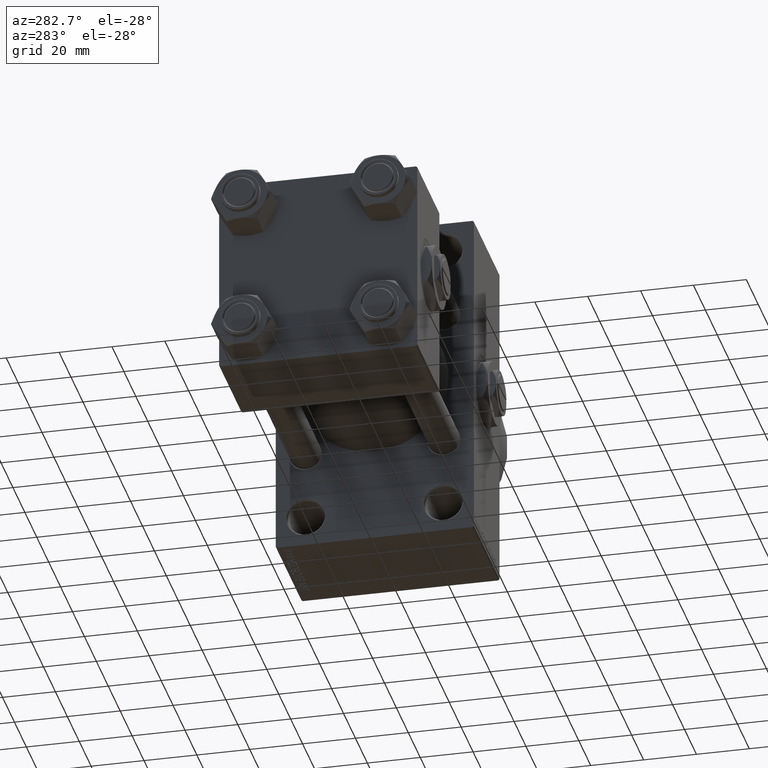
[diagram: clean part render]
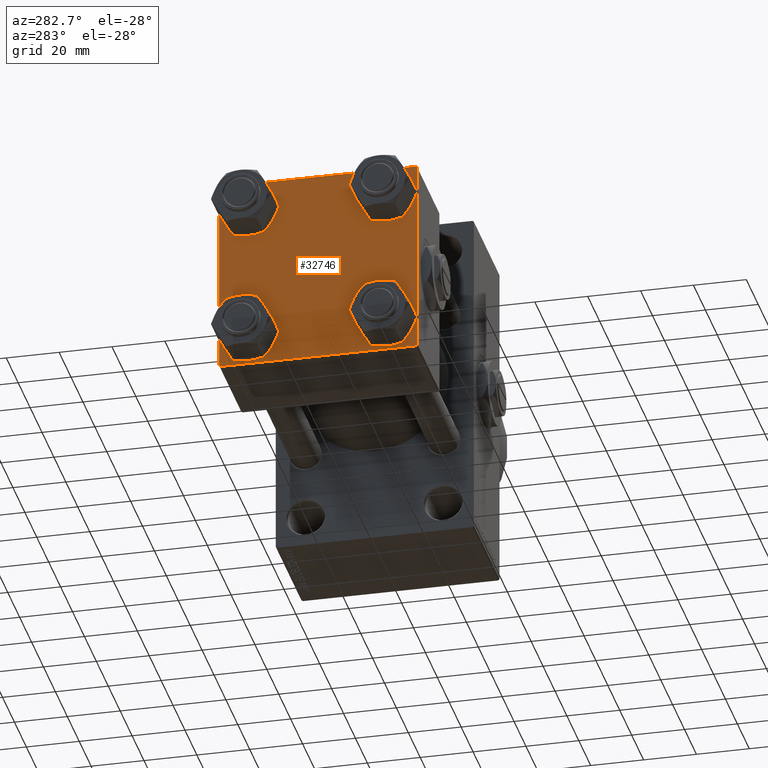
[diagram: same view with one face highlighted and labeled with its STEP entity id]
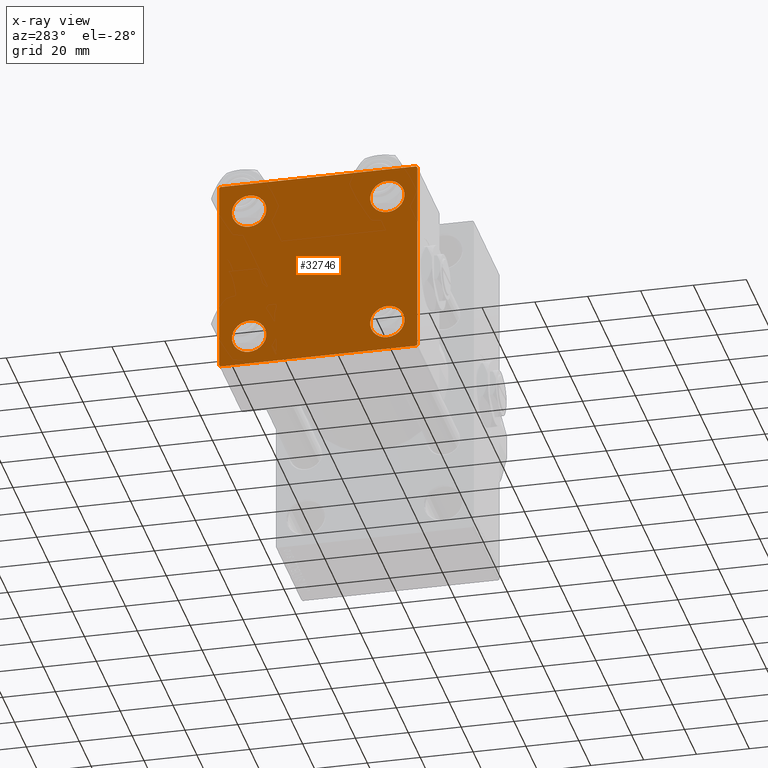
[diagram: x-ray of the same camera — body ghosted, the highlighted face saturated]
A machine part, auxiliary view. The second image highlights one B-rep face of the part: STEP entity #32746.
The next image is the same camera in x-ray: the body ghosted, the highlighted face saturated — about 0% of this face is hidden behind the body in this view.
In plain terms, the highlighted planar face has unit normal (-1, 0, 0).
Its self-contained STEP definition (entity closure, byte-faithful):
#189 = ORIENTED_EDGE ( 'NONE', *, *, #20955, .T. ) ;
#382 = DIRECTION ( 'NONE',  ( 0.000000000000000000, 0.000000000000000000, 1.000000000000000000 ) ) ;
#777 = FACE_BOUND ( 'NONE', #7199, .T. ) ;
#976 = VECTOR ( 'NONE', #11649, 1000.000000000000000 ) ;
#1292 = CIRCLE ( 'NONE', #49472, 6.500000000000023093 ) ;
#2446 = DIRECTION ( 'NONE',  ( -0.000000000000000000, 0.7071067811865474617, 0.7071067811865474617 ) ) ;
#2979 = LINE ( 'NONE', #38175, #24004 ) ;
#3064 = CARTESIAN_POINT ( 'NONE',  ( 0.000000000000000000, 26.14999999999999858, 26.15000000000000213 ) ) ;
#3165 = VERTEX_POINT ( 'NONE', #47773 ) ;
#3641 = LINE ( 'NONE', #26267, #976 ) ;
#4174 = ORIENTED_EDGE ( 'NONE', *, *, #5748, .T. ) ;
#4311 = LINE ( 'NONE', #12841, #19788 ) ;
#5137 = CARTESIAN_POINT ( 'NONE',  ( 0.000000000000000000, -26.14999999999999147, 32.65000000000003411 ) ) ;
#5237 = EDGE_CURVE ( 'NONE', #35283, #8587, #10566, .T. ) ;
#5442 = ORIENTED_EDGE ( 'NONE', *, *, #32680, .T. ) ;
#5748 = EDGE_CURVE ( 'NONE', #46228, #17312, #3641, .T. ) ;
#5981 = LINE ( 'NONE', #48239, #37715 ) ;
#6473 = DIRECTION ( 'NONE',  ( 1.000000000000000000, -0.000000000000000000, 0.000000000000000000 ) ) ;
#6665 = ORIENTED_EDGE ( 'NONE', *, *, #18508, .T. ) ;
#6720 = DIRECTION ( 'NONE',  ( 1.000000000000000000, -0.000000000000000000, 0.000000000000000000 ) ) ;
#6800 = CARTESIAN_POINT ( 'NONE',  ( 0.000000000000000000, 26.14999999999999858, -26.15000000000000213 ) ) ;
#6885 = CIRCLE ( 'NONE', #43037, 6.500000000000015987 ) ;
#7199 = EDGE_LOOP ( 'NONE', ( #5442, #189 ) ) ;
#7265 = CIRCLE ( 'NONE', #46619, 6.500000000000023093 ) ;
#7895 = CARTESIAN_POINT ( 'NONE',  ( 0.000000000000000000, 36.99999999999999289, 37.50000000000000000 ) ) ;
#8085 = VECTOR ( 'NONE', #39025, 1000.000000000000114 ) ;
#8185 = ORIENTED_EDGE ( 'NONE', *, *, #48821, .T. ) ;
#8396 = CARTESIAN_POINT ( 'NONE',  ( 0.000000000000000000, 26.14999999999999858, 32.65000000000002700 ) ) ;
#8587 = VERTEX_POINT ( 'NONE', #26658 ) ;
#9045 = EDGE_CURVE ( 'NONE', #8587, #35283, #26794, .T. ) ;
#9138 = AXIS2_PLACEMENT_3D ( 'NONE', #39108, #26788, #382 ) ;
#9458 = LINE ( 'NONE', #39906, #35238 ) ;
#9737 = DIRECTION ( 'NONE',  ( 0.000000000000000000, -0.7071067811865524577, 0.7071067811865426878 ) ) ;
#10015 = CARTESIAN_POINT ( 'NONE',  ( 0.000000000000000000, 26.14999999999999858, -32.65000000000001990 ) ) ;
#10566 = CIRCLE ( 'NONE', #21038, 6.500000000000015987 ) ;
#11649 = DIRECTION ( 'NONE',  ( 0.000000000000000000, -1.000000000000000000, -9.251858538542972814E-17 ) ) ;
#12340 = FACE_BOUND ( 'NONE', #37888, .T. ) ;
#12574 = VERTEX_POINT ( 'NONE', #8396 ) ;
#12841 = CARTESIAN_POINT ( 'NONE',  ( 0.000000000000000000, -37.50000000000000711, 37.49999999999999289 ) ) ;
#13527 = DIRECTION ( 'NONE',  ( 1.000000000000000000, -0.000000000000000000, 0.000000000000000000 ) ) ;
#14251 = ORIENTED_EDGE ( 'NONE', *, *, #42115, .T. ) ;
#15067 = DIRECTION ( 'NONE',  ( 1.000000000000000000, -0.000000000000000000, 0.000000000000000000 ) ) ;
#15614 = DIRECTION ( 'NONE',  ( -1.000000000000000000, 0.000000000000000000, -0.000000000000000000 ) ) ;
#15665 = EDGE_CURVE ( 'NONE', #45988, #44347, #36049, .T. ) ;
#15882 = LINE ( 'NONE', #23680, #8085 ) ;
#15956 = EDGE_LOOP ( 'NONE', ( #33831, #43477 ) ) ;
#15982 = AXIS2_PLACEMENT_3D ( 'NONE', #33343, #22264, #33839 ) ;
#16008 = CARTESIAN_POINT ( 'NONE',  ( 0.000000000000000000, -37.00000000000002132, -37.50000000000000711 ) ) ;
#16534 = VERTEX_POINT ( 'NONE', #5137 ) ;
#17312 = VERTEX_POINT ( 'NONE', #16008 ) ;
#17619 = CIRCLE ( 'NONE', #15982, 6.500000000000023093 ) ;
#17696 = AXIS2_PLACEMENT_3D ( 'NONE', #29600, #13527, #32643 ) ;
#17934 = DIRECTION ( 'NONE',  ( 0.000000000000000000, 0.000000000000000000, -1.000000000000000000 ) ) ;
#18004 = EDGE_CURVE ( 'NONE', #16534, #39925, #1292, .T. ) ;
#18399 = DIRECTION ( 'NONE',  ( 1.000000000000000000, -0.000000000000000000, 0.000000000000000000 ) ) ;
#18508 = EDGE_CURVE ( 'NONE', #18543, #3165, #6885, .T. ) ;
#18543 = VERTEX_POINT ( 'NONE', #29232 ) ;
#18747 = ORIENTED_EDGE ( 'NONE', *, *, #40549, .T. ) ;
#19681 = EDGE_CURVE ( 'NONE', #35596, #20548, #4311, .T. ) ;
#19788 = VECTOR ( 'NONE', #35496, 1000.000000000000000 ) ;
#20091 = CIRCLE ( 'NONE', #17696, 6.500000000000015987 ) ;
#20548 = VERTEX_POINT ( 'NONE', #21125 ) ;
#20955 = EDGE_CURVE ( 'NONE', #32112, #12574, #48784, .T. ) ;
#20961 = CARTESIAN_POINT ( 'NONE',  ( 0.000000000000000000, 37.49999999999999289, 37.50000000000000000 ) ) ;
#21038 = AXIS2_PLACEMENT_3D ( 'NONE', #6800, #15067, #26136 ) ;
#21125 = CARTESIAN_POINT ( 'NONE',  ( 0.000000000000000000, -37.50000000000000000, -37.00000000000003553 ) ) ;
#21306 = LINE ( 'NONE', #44695, #42494 ) ;
#21963 = CARTESIAN_POINT ( 'NONE',  ( 0.000000000000000000, 37.49999999999999289, -36.99999999999998579 ) ) ;
#22264 = DIRECTION ( 'NONE',  ( 1.000000000000000000, -0.000000000000000000, 0.000000000000000000 ) ) ;
#22939 = CARTESIAN_POINT ( 'NONE',  ( 0.000000000000000000, -37.50000000000000711, 36.99999999999999289 ) ) ;
#23680 = CARTESIAN_POINT ( 'NONE',  ( 0.000000000000000000, 37.24999999999999289, 37.24999999999999289 ) ) ;
#23904 = PLANE ( 'NONE',  #27306 ) ;
#24004 = VECTOR ( 'NONE', #30371, 1000.000000000000000 ) ;
#24415 = FACE_OUTER_BOUND ( 'NONE', #26517, .T. ) ;
#26136 = DIRECTION ( 'NONE',  ( 0.000000000000000000, 0.000000000000000000, 1.000000000000000000 ) ) ;
#26267 = CARTESIAN_POINT ( 'NONE',  ( 0.000000000000000000, 37.49999999999999289, -37.50000000000000000 ) ) ;
#26517 = EDGE_LOOP ( 'NONE', ( #38374, #18747, #4174, #37903, #47715, #14251, #31813, #8185 ) ) ;
#26658 = CARTESIAN_POINT ( 'NONE',  ( 0.000000000000000000, 26.14999999999999858, -19.64999999999998792 ) ) ;
#26788 = DIRECTION ( 'NONE',  ( 1.000000000000000000, -0.000000000000000000, 0.000000000000000000 ) ) ;
#26794 = CIRCLE ( 'NONE', #9138, 6.500000000000015987 ) ;
#27037 = CARTESIAN_POINT ( 'NONE',  ( 0.000000000000000000, 36.99999999999997868, -37.50000000000000000 ) ) ;
#27306 = AXIS2_PLACEMENT_3D ( 'NONE', #34963, #15614, #35735 ) ;
#27812 = EDGE_LOOP ( 'NONE', ( #34031, #31228 ) ) ;
#28570 = DIRECTION ( 'NONE',  ( -0.000000000000000000, -0.7071067811865474617, -0.7071067811865474617 ) ) ;
#28978 = CARTESIAN_POINT ( 'NONE',  ( 0.000000000000000000, -26.14999999999999147, -26.15000000000000924 ) ) ;
#29232 = CARTESIAN_POINT ( 'NONE',  ( 0.000000000000000000, -26.14999999999999147, -32.65000000000002700 ) ) ;
#29587 = EDGE_CURVE ( 'NONE', #39925, #16534, #17619, .T. ) ;
#29600 = CARTESIAN_POINT ( 'NONE',  ( 0.000000000000000000, -26.14999999999999147, -26.15000000000000924 ) ) ;
#29965 = DIRECTION ( 'NONE',  ( 0.000000000000000000, 0.000000000000000000, 1.000000000000000000 ) ) ;
#30371 = DIRECTION ( 'NONE',  ( 0.000000000000000000, -1.000000000000000000, -9.251858538542971581E-17 ) ) ;
#30936 = FACE_BOUND ( 'NONE', #15956, .T. ) ;
#31228 = ORIENTED_EDGE ( 'NONE', *, *, #29587, .T. ) ;
#31813 = ORIENTED_EDGE ( 'NONE', *, *, #45099, .F. ) ;
#32112 = VERTEX_POINT ( 'NONE', #49285 ) ;
#32511 = DIRECTION ( 'NONE',  ( 0.000000000000000000, 0.000000000000000000, 1.000000000000000000 ) ) ;
#32643 = DIRECTION ( 'NONE',  ( 0.000000000000000000, 0.000000000000000000, 1.000000000000000000 ) ) ;
#32680 = EDGE_CURVE ( 'NONE', #12574, #32112, #7265, .T. ) ;
#32746 = ADVANCED_FACE ( 'NONE', ( #46552, #12340, #30936, #777, #24415 ), #23904, .T. ) ;
#33121 = DIRECTION ( 'NONE',  ( 0.000000000000000000, 0.000000000000000000, 1.000000000000000000 ) ) ;
#33343 = CARTESIAN_POINT ( 'NONE',  ( 0.000000000000000000, -26.14999999999999147, 26.15000000000000924 ) ) ;
#33831 = ORIENTED_EDGE ( 'NONE', *, *, #9045, .T. ) ;
#33839 = DIRECTION ( 'NONE',  ( 0.000000000000000000, 0.000000000000000000, 1.000000000000000000 ) ) ;
#33862 = CARTESIAN_POINT ( 'NONE',  ( 0.000000000000000000, -26.14999999999999147, 26.15000000000000924 ) ) ;
#34031 = ORIENTED_EDGE ( 'NONE', *, *, #18004, .T. ) ;
#34104 = CARTESIAN_POINT ( 'NONE',  ( 0.000000000000000000, 26.14999999999999858, 26.15000000000000213 ) ) ;
#34963 = CARTESIAN_POINT ( 'NONE',  ( 0.000000000000000000, 0.000000000000000000, 0.000000000000000000 ) ) ;
#35238 = VECTOR ( 'NONE', #28570, 1000.000000000000114 ) ;
#35283 = VERTEX_POINT ( 'NONE', #10015 ) ;
#35496 = DIRECTION ( 'NONE',  ( 0.000000000000000000, 9.251858538542971581E-17, -1.000000000000000000 ) ) ;
#35596 = VERTEX_POINT ( 'NONE', #22939 ) ;
#35735 = DIRECTION ( 'NONE',  ( -0.000000000000000000, 0.000000000000000000, 1.000000000000000000 ) ) ;
#36049 = LINE ( 'NONE', #20961, #45388 ) ;
#37715 = VECTOR ( 'NONE', #9737, 1000.000000000000000 ) ;
#37888 = EDGE_LOOP ( 'NONE', ( #46989, #6665 ) ) ;
#37903 = ORIENTED_EDGE ( 'NONE', *, *, #45997, .T. ) ;
#38175 = CARTESIAN_POINT ( 'NONE',  ( 0.000000000000000000, 37.49999999999999289, 37.50000000000000000 ) ) ;
#38323 = AXIS2_PLACEMENT_3D ( 'NONE', #34104, #6720, #33121 ) ;
#38374 = ORIENTED_EDGE ( 'NONE', *, *, #15665, .T. ) ;
#39025 = DIRECTION ( 'NONE',  ( 0.000000000000000000, 0.7071067811865474617, -0.7071067811865474617 ) ) ;
#39108 = CARTESIAN_POINT ( 'NONE',  ( 0.000000000000000000, 26.14999999999999858, -26.15000000000000213 ) ) ;
#39443 = CARTESIAN_POINT ( 'NONE',  ( 0.000000000000000000, 37.49999999999999289, 37.00000000000000000 ) ) ;
#39906 = CARTESIAN_POINT ( 'NONE',  ( 0.000000000000000000, 37.24999999999998579, -37.24999999999998579 ) ) ;
#39925 = VERTEX_POINT ( 'NONE', #44066 ) ;
#40549 = EDGE_CURVE ( 'NONE', #44347, #46228, #9458, .T. ) ;
#40797 = DIRECTION ( 'NONE',  ( 1.000000000000000000, -0.000000000000000000, 0.000000000000000000 ) ) ;
#42115 = EDGE_CURVE ( 'NONE', #35596, #49664, #21306, .T. ) ;
#42494 = VECTOR ( 'NONE', #2446, 1000.000000000000114 ) ;
#42819 = CARTESIAN_POINT ( 'NONE',  ( 0.000000000000000000, -37.00000000000000711, 37.49999999999999289 ) ) ;
#43037 = AXIS2_PLACEMENT_3D ( 'NONE', #28978, #40797, #32511 ) ;
#43344 = VERTEX_POINT ( 'NONE', #7895 ) ;
#43477 = ORIENTED_EDGE ( 'NONE', *, *, #5237, .T. ) ;
#44066 = CARTESIAN_POINT ( 'NONE',  ( 0.000000000000000000, -26.14999999999999147, 19.64999999999999147 ) ) ;
#44347 = VERTEX_POINT ( 'NONE', #21963 ) ;
#44695 = CARTESIAN_POINT ( 'NONE',  ( -0.000000000000000000, -37.25000000000000000, 37.25000000000000000 ) ) ;
#45099 = EDGE_CURVE ( 'NONE', #43344, #49664, #2979, .T. ) ;
#45388 = VECTOR ( 'NONE', #17934, 1000.000000000000000 ) ;
#45988 = VERTEX_POINT ( 'NONE', #39443 ) ;
#45997 = EDGE_CURVE ( 'NONE', #17312, #20548, #5981, .T. ) ;
#46228 = VERTEX_POINT ( 'NONE', #27037 ) ;
#46552 = FACE_BOUND ( 'NONE', #27812, .T. ) ;
#46619 = AXIS2_PLACEMENT_3D ( 'NONE', #3064, #18399, #29965 ) ;
#46989 = ORIENTED_EDGE ( 'NONE', *, *, #48348, .T. ) ;
#47715 = ORIENTED_EDGE ( 'NONE', *, *, #19681, .F. ) ;
#47773 = CARTESIAN_POINT ( 'NONE',  ( 0.000000000000000000, -26.14999999999999147, -19.64999999999999503 ) ) ;
#48239 = CARTESIAN_POINT ( 'NONE',  ( 0.000000000000000000, -37.24999999999975842, -37.25000000000027001 ) ) ;
#48240 = DIRECTION ( 'NONE',  ( 0.000000000000000000, 0.000000000000000000, 1.000000000000000000 ) ) ;
#48348 = EDGE_CURVE ( 'NONE', #3165, #18543, #20091, .T. ) ;
#48784 = CIRCLE ( 'NONE', #38323, 6.500000000000023093 ) ;
#48821 = EDGE_CURVE ( 'NONE', #43344, #45988, #15882, .T. ) ;
#49285 = CARTESIAN_POINT ( 'NONE',  ( 0.000000000000000000, 26.14999999999999858, 19.64999999999998437 ) ) ;
#49472 = AXIS2_PLACEMENT_3D ( 'NONE', #33862, #6473, #48240 ) ;
#49664 = VERTEX_POINT ( 'NONE', #42819 ) ;